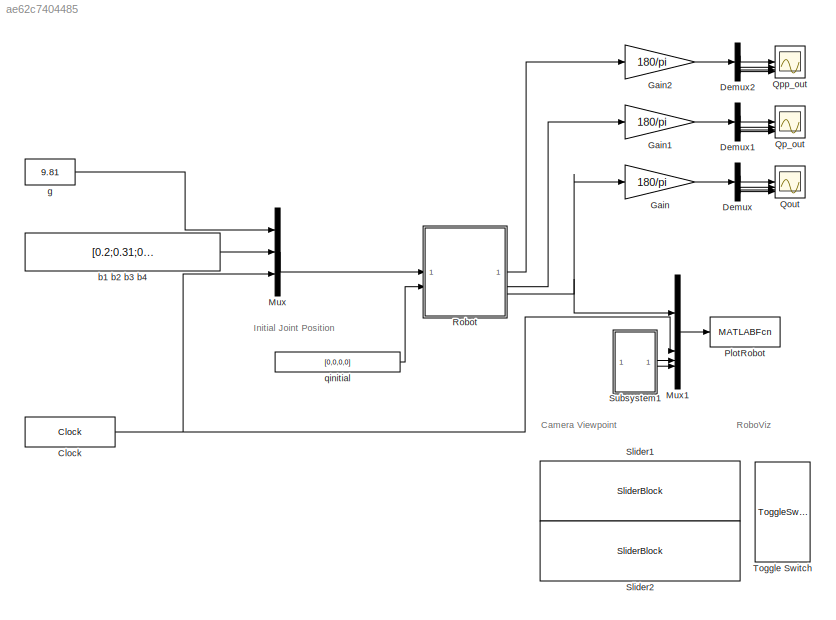
MODEL slx_ae62c7404485
KIND model
CONFIG AbsTol = auto
CONFIG EnableMultiTasking = on
CONFIG FixedStep = 0.001
CONFIG MaxStep = auto
CONFIG MinStep = auto
CONFIG RelTol = 1e-3
CONFIG SampleTimeConstraint = Unconstrained
CONFIG SolverName = ode1
CONFIG StartTime = 0.0
CONFIG StopTime = 30
BLOCK [Clock] Clock
  DisplayTime = on
BLOCK [Demux] Demux
BLOCK [Demux] Demux1
BLOCK [Demux] Demux2
BLOCK [Gain] Gain
  Gain = 180/pi
BLOCK [Gain] Gain1
  Gain = 180/pi
BLOCK [Gain] Gain2
  Gain = 180/pi
BLOCK [Mux] Mux
  DisplayOption = bar
  Inputs = 3
BLOCK [Mux] Mux1
  DisplayOption = bar
BLOCK [MATLABFcn] PlotRobot
  MATLABFcn = plotRobot_dynamic(u)
  OutputDimensions = 0
BLOCK [Scope] Qout
  Floating = off
  NumInputPorts = 4
  ScopeSpecificationString = Simulink.scopes.TimeScopeBlockCfg('CurrentConfiguration', extmgr.ConfigurationSet(extmgr.Configuration('Core','General UI',true),extmgr.Configuration('Core','Source UI',true),extmgr.Configuration('Sources','WiredSimulink',true,'DataLoggingVariableName','ScopeData1'),extmgr.Configuration('Visuals','Time Domain',true,'SerializedDisplays',{struct('MinYLimReal','-8.6892','MaxYLimReal','12.91966','YLab...<+3462ch>
BLOCK [Scope] Qp_out
  Floating = off
  NumInputPorts = 4
  ScopeSpecificationString = Simulink.scopes.TimeScopeBlockCfg('CurrentConfiguration', extmgr.ConfigurationSet(extmgr.Configuration('Core','General UI',true),extmgr.Configuration('Core','Source UI',true),extmgr.Configuration('Sources','WiredSimulink',true,'DataLoggingVariableName','ScopeData2'),extmgr.Configuration('Visuals','Time Domain',true,'SerializedDisplays',{struct('MinYLimReal','-102.60737','MaxYLimReal','110.54335','...<+3472ch>
BLOCK [Scope] Qpp_out
  Floating = off
  NumInputPorts = 4
  ScopeSpecificationString = Simulink.scopes.TimeScopeBlockCfg('CurrentConfiguration', extmgr.ConfigurationSet(extmgr.Configuration('Core','General UI',true),extmgr.Configuration('Core','Source UI',true),extmgr.Configuration('Sources','WiredSimulink',true,'DataLoggingVariableName','ScopeData1'),extmgr.Configuration('Visuals','Time Domain',true,'SerializedDisplays',{struct('MinYLimReal','-1216.69142','MaxYLimReal','1387.95653'...<+3569ch>
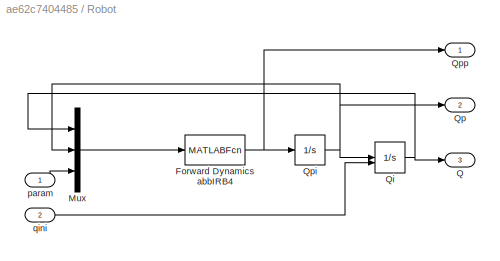
BLOCK [SubSystem] Robot
BLOCK [MATLABFcn] Robot/Forward Dynamics abbIRB4
  MATLABFcn = Dynamic_abbIRB4v2(u)
  OutputDimensions = 4
BLOCK [Mux] Robot/Mux
  DisplayOption = bar
  Inputs = 3
BLOCK [Outport] Robot/Q
  Port = 3
BLOCK [Integrator] Robot/Qi
  InitialCondition = [0;0;0;0]
  InitialConditionSource = external
BLOCK [Outport] Robot/Qp
  Port = 2
BLOCK [Integrator] Robot/Qpi
  InitialCondition = [0;0;0;0]
BLOCK [Outport] Robot/Qpp
BLOCK [Inport] Robot/param
BLOCK [Inport] Robot/qini
  Port = 2
BLOCK [SliderBlock] Slider1
  ScaleMax = 180
  ScaleMin = -180
  TickInterval = 180
BLOCK [SliderBlock] Slider2
  ScaleMax = 180
  ScaleMin = -180
  TickInterval = 180
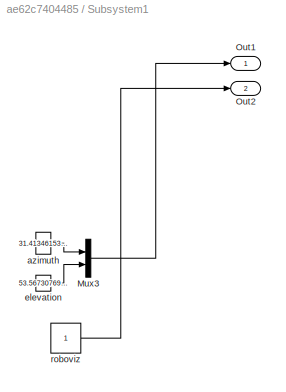
BLOCK [SubSystem] Subsystem1
BLOCK [Mux] Subsystem1/Mux3
  DisplayOption = bar
  Inputs = 2
BLOCK [Outport] Subsystem1/Out1
BLOCK [Outport] Subsystem1/Out2
  Port = 2
BLOCK [Constant] Subsystem1/azimuth
  Value = 31.41346153846152
BLOCK [Constant] Subsystem1/elevation
  Value = 53.56730769230768
BLOCK [Constant] Subsystem1/roboviz
BLOCK [ToggleSwitchBlock] Toggle Switch
BLOCK [Constant] b1 b2 b3 b4 
  Value = [0.2;0.31;0.51;0.71]
BLOCK [Constant] g
  Value = 9.81
BLOCK [Constant] qinitial
  Value = [0,0,0,0]
ANNOTATION (root): Camera Viewpoint
ANNOTATION (root): RoboViz
ANNOTATION (root): Initial Joint Position
NET Clock:1 -> Mux1:2, Mux:3
LINE Demux1:1 -> Qp_out:1
LINE Demux1:2 -> Qp_out:2
LINE Demux1:3 -> Qp_out:3
LINE Demux1:4 -> Qp_out:4
LINE Demux2:1 -> Qpp_out:1
LINE Demux2:2 -> Qpp_out:2
LINE Demux2:3 -> Qpp_out:3
LINE Demux2:4 -> Qpp_out:4
LINE Demux:1 -> Qout:1
LINE Demux:2 -> Qout:2
LINE Demux:3 -> Qout:3
LINE Demux:4 -> Qout:4
LINE Gain1:1 -> Demux1:1
LINE Gain2:1 -> Demux2:1
LINE Gain:1 -> Demux:1
LINE Mux1:1 -> PlotRobot:1
LINE Mux:1 -> Robot:1
NET Robot/Forward Dynamics abbIRB4:1 -> Robot/Qpi:1, Robot/Qpp:1
LINE Robot/Mux:1 -> Robot/Forward Dynamics abbIRB4:1
NET Robot/Qi:1 -> Robot/Mux:1, Robot/Q:1
NET Robot/Qpi:1 -> Robot/Mux:2, Robot/Qi:1, Robot/Qp:1
LINE Robot/param:1 -> Robot/Mux:3
LINE Robot/qini:1 -> Robot/Qi:2
LINE Robot:1 -> Gain2:1
LINE Robot:2 -> Gain1:1
NET Robot:3 -> Gain:1, Mux1:1
LINE Subsystem1/Mux3:1 -> Subsystem1/Out1:1
LINE Subsystem1/azimuth:1 -> Subsystem1/Mux3:1
LINE Subsystem1/elevation:1 -> Subsystem1/Mux3:2
LINE Subsystem1/roboviz:1 -> Subsystem1/Out2:1
LINE Subsystem1:1 -> Mux1:3
LINE Subsystem1:2 -> Mux1:4
LINE b1 b2 b3 b4 :1 -> Mux:2
LINE g:1 -> Mux:1
LINE qinitial:1 -> Robot:2
note: NET lines group one-source signal fan-out (src -> all destinations, sorted); 1:1 wires keep LINE
